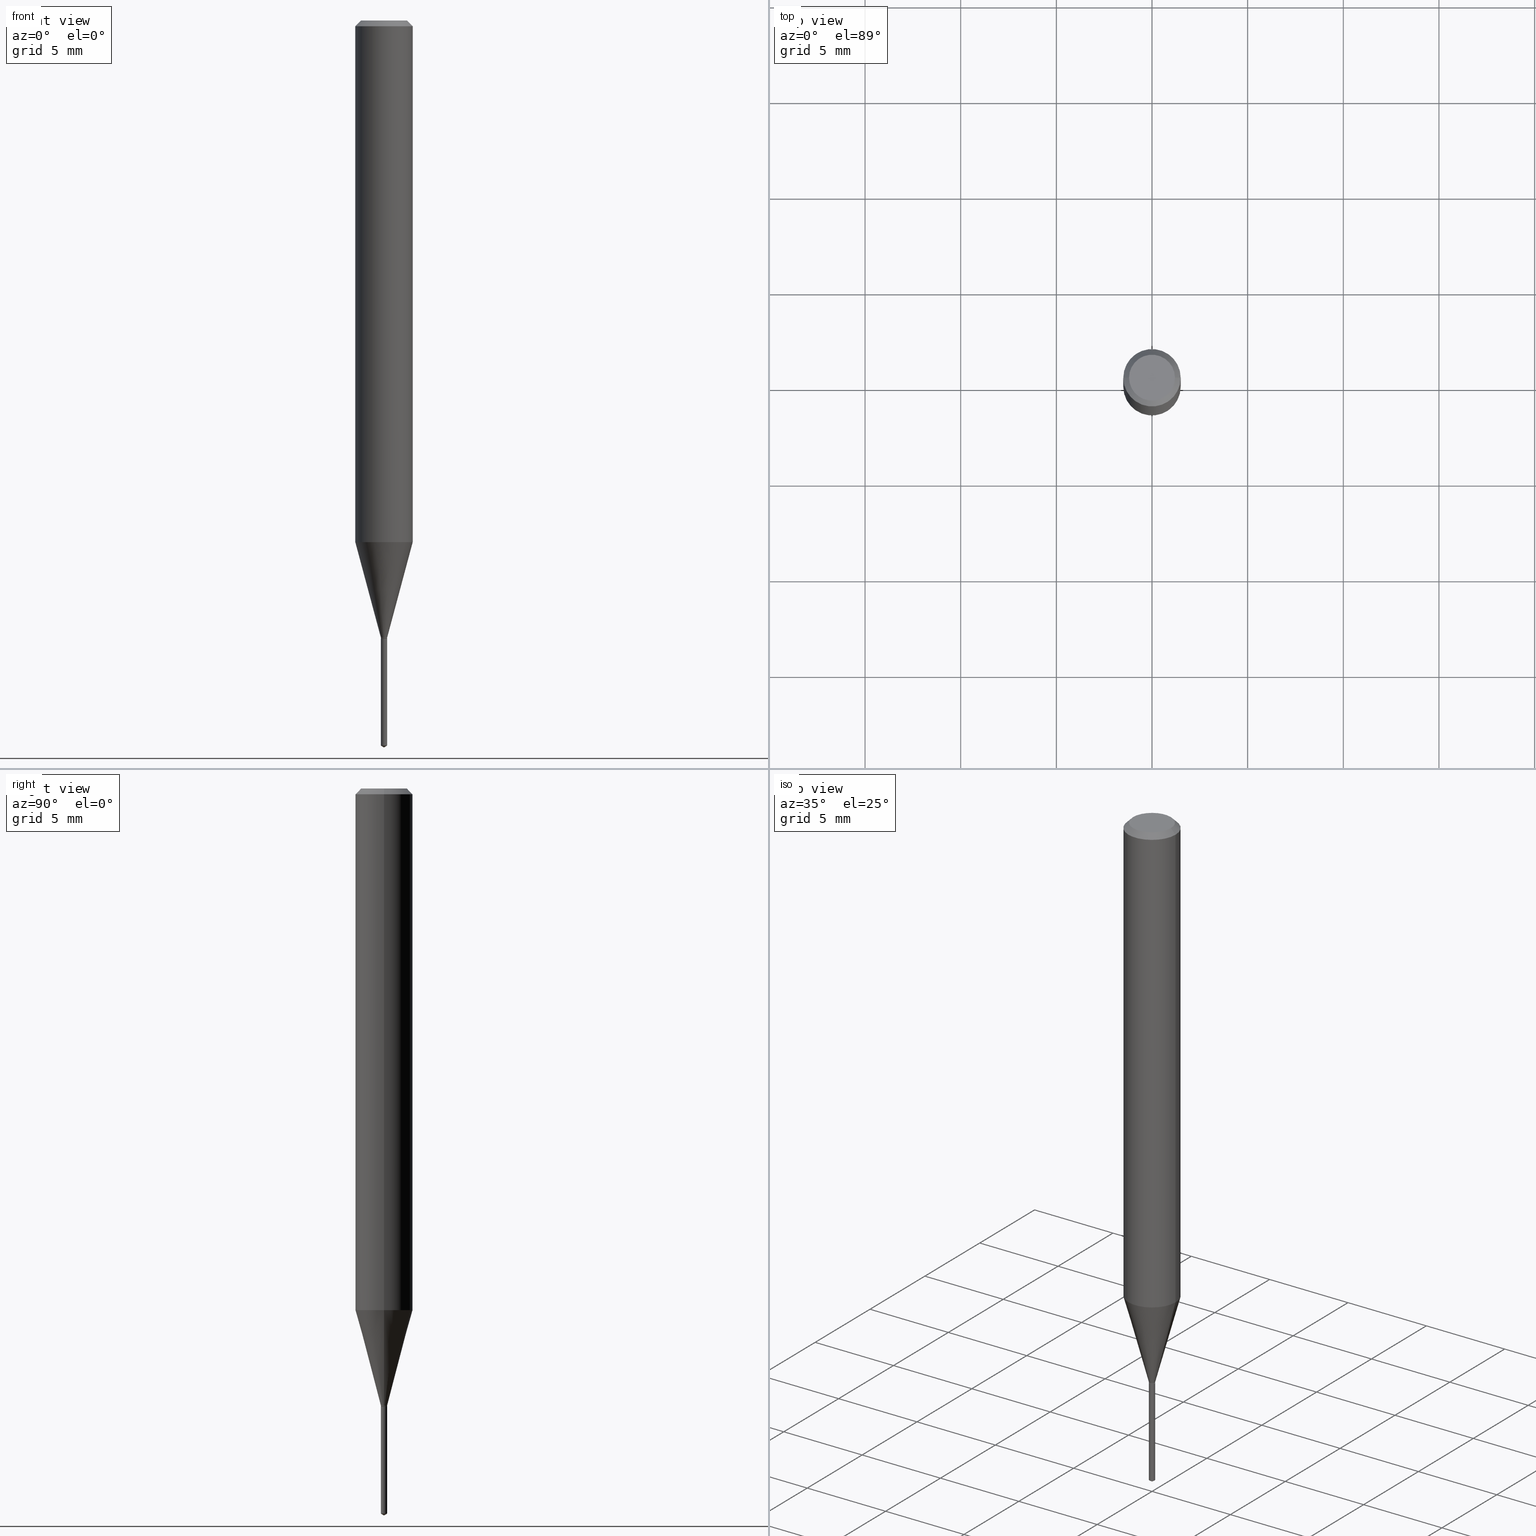
[diagram: canonical four-view strip — front | top / right | iso, engineering-drawing reading convention]
A machine part, canonical four-view strip (front | top / right | iso — engineering-drawing reading convention). The complete STEP part file that produces these views, byte-faithful:
ISO-10303-21;
HEADER;
FILE_DESCRIPTION (( 'STEP AP203' ),
    '1' );
FILE_NAME ('07408.STEP',
    '2024-04-23T21:08:28',
    ( '' ),
    ( '' ),
    'SwSTEP 2.0',
    'SolidWorks 2023',
    '' );
FILE_SCHEMA (( 'CONFIG_CONTROL_DESIGN' ));
ENDSEC;

DATA;
#1 = EDGE_CURVE ( 'NONE', #10, #107, #301, .T. ) ;
#2 = ORIENTED_EDGE ( 'NONE', *, *, #147, .F. ) ;
#3 = CARTESIAN_POINT ( 'NONE',  ( 4.618527782444303792E-17, 0.006499999999995558810, -1.271700000000000053 ) ) ;
#4 = CONICAL_SURFACE ( 'NONE', #114, 0.005999999999999998390, 0.7853981633975496424 ) ;
#5 = SHAPE_DEFINITION_REPRESENTATION ( #445, #229 ) ;
#6 = DIRECTION ( 'NONE',  ( -2.445468806185136877E-29, 3.491481338843145188E-15, 1.000000000000000000 ) ) ;
#7 = CARTESIAN_POINT ( 'NONE',  ( 0.05905000000000014404, -4.160731030871339348E-15, -1.073580730062255295 ) ) ;
#8 = ORIENTED_EDGE ( 'NONE', *, *, #367, .T. ) ;
#9 = DIRECTION ( 'NONE',  ( -0.7071067811865453523, 2.468850131082234184E-15, -0.7071067811865496822 ) ) ;
#10 = VERTEX_POINT ( 'NONE', #138 ) ;
#11 = CIRCLE ( 'NONE', #135, 0.006499999999999998834 ) ;
#12 = CONICAL_SURFACE ( 'NONE', #148, 0.05904999999999999832, 0.7853981633974452814 ) ;
#13 = LINE ( 'NONE', #467, #210 ) ;
#14 = ORIENTED_EDGE ( 'NONE', *, *, #286, .T. ) ;
#15 = LINE ( 'NONE', #327, #146 ) ;
#16 = ORIENTED_EDGE ( 'NONE', *, *, #147, .T. ) ;
#17 = ADVANCED_FACE ( 'NONE', ( #102 ), #141, .F. ) ;
#18 = PRODUCT ( '07408', '07408', '', ( #149 ) ) ;
#19 = FACE_OUTER_BOUND ( 'NONE', #168, .T. ) ;
#20 = FACE_OUTER_BOUND ( 'NONE', #268, .T. ) ;
#21 = VECTOR ( 'NONE', #444, 39.37007874015747433 ) ;
#22 = PRODUCT_DEFINITION_FORMATION_WITH_SPECIFIED_SOURCE ( 'ANY', '', #18, .NOT_KNOWN. ) ;
#23 = CARTESIAN_POINT ( 'NONE',  ( 3.105011743213267483E-29, -4.433133855929141290E-15, -1.269699999999999829 ) ) ;
#24 = EDGE_CURVE ( 'NONE', #307, #88, #36, .T. ) ;
#25 = DIRECTION ( 'NONE',  ( 1.000000000000000000, -6.982962677686266711E-15, 4.876176775795936353E-29 ) ) ;
#26 = ORIENTED_EDGE ( 'NONE', *, *, #263, .T. ) ;
#27 = PERSON_AND_ORGANIZATION_ROLE ( 'creator' ) ;
#28 = DIRECTION ( 'NONE',  ( -2.445468806185136597E-29, 3.491481338843145583E-15, 1.000000000000000000 ) ) ;
#29 = AXIS2_PLACEMENT_3D ( 'NONE', #152, #87, #274 ) ;
#30 = APPLICATION_CONTEXT ( 'configuration controlled 3d designs of mechanical parts and assemblies' ) ;
#31 = APPROVAL_DATE_TIME ( #257, #279 ) ;
#32 = CARTESIAN_POINT ( 'NONE',  ( 3.109902680825638129E-29, -4.440116818606828093E-15, -1.271700000000000053 ) ) ;
#33 = MANIFOLD_SOLID_BREP ( 'Body-Move/Copy2[1]', #254 ) ;
#34 = APPLICATION_PROTOCOL_DEFINITION ( 'international standard', 'config_control_design', 1994, #271 ) ;
#35 = UNCERTAINTY_MEASURE_WITH_UNIT (LENGTH_MEASURE( 1.000000000000000082E-05 ), #103, 'distance_accuracy_value', 'NONE');
#36 = LINE ( 'NONE', #183, #328 ) ;
#37 = PERSON_AND_ORGANIZATION_ROLE ( 'creator' ) ;
#38 = DIRECTION ( 'NONE',  ( 1.000000000000000000, -6.982962677686265133E-15, 0.000000000000000000 ) ) ;
#39 = VECTOR ( 'NONE', #375, 39.37007874015748143 ) ;
#40 = CC_DESIGN_SECURITY_CLASSIFICATION ( #203, ( #22 ) ) ;
#41 = CARTESIAN_POINT ( 'NONE',  ( 3.109902680825638129E-29, -4.440116818606828093E-15, -1.271700000000000053 ) ) ;
#42 = EDGE_CURVE ( 'NONE', #326, #10, #246, .T. ) ;
#43 = CARTESIAN_POINT ( 'NONE',  ( 3.109902680825638129E-29, -4.440116818606828093E-15, -1.271700000000000053 ) ) ;
#44 = DIRECTION ( 'NONE',  ( 1.000000000000000000, -6.982962677686266711E-15, 0.000000000000000000 ) ) ;
#45 = CIRCLE ( 'NONE', #176, 0.05904999999999999832 ) ;
#46 = CONICAL_SURFACE ( 'NONE', #137, 0.006499999999999998834, 0.2617993877991500740 ) ;
#47 = DIRECTION ( 'NONE',  ( -2.445468806185136877E-29, 3.491481338843145188E-15, 1.000000000000000000 ) ) ;
#48 = EDGE_LOOP ( 'NONE', ( #96, #117, #454, #57 ) ) ;
#49 = CC_DESIGN_PERSON_AND_ORGANIZATION_ASSIGNMENT ( #370, #27, ( #22 ) ) ;
#50 = CARTESIAN_POINT ( 'NONE',  ( 3.646262494524386846E-29, -5.214053690114014577E-15, -1.492194405976320581 ) ) ;
#51 = ORIENTED_EDGE ( 'NONE', *, *, #42, .F. ) ;
#52 = DIRECTION ( 'NONE',  ( -2.432532523098789799E-29, 3.510006832510301925E-15, 1.000000000000000000 ) ) ;
#53 = ORIENTED_EDGE ( 'NONE', *, *, #292, .T. ) ;
#54 = AXIS2_PLACEMENT_3D ( 'NONE', #298, #259, #180 ) ;
#55 = AXIS2_PLACEMENT_3D ( 'NONE', #442, #376, #181 ) ;
#56 = CARTESIAN_POINT ( 'NONE',  ( 2.888098660104663328E-31, -4.123439461173779030E-17, -0.01181000000000006871 ) ) ;
#57 = ORIENTED_EDGE ( 'NONE', *, *, #71, .F. ) ;
#58 = CARTESIAN_POINT ( 'NONE',  ( 3.109902680825638129E-29, -4.440116818606828093E-15, -1.271700000000000053 ) ) ;
#59 = DIRECTION ( 'NONE',  ( -2.445468806185136597E-29, 3.491481338843145583E-15, 1.000000000000000000 ) ) ;
#60 = EDGE_CURVE ( 'NONE', #422, #107, #11, .T. ) ;
#61 = FACE_OUTER_BOUND ( 'NONE', #233, .T. ) ;
#62 = LOCAL_TIME ( 17, 8, 28.00000000000000000, #76 ) ;
#63 = COORDINATED_UNIVERSAL_TIME_OFFSET ( 5, 0, .BEHIND. ) ;
#64 = VERTEX_POINT ( 'NONE', #150 ) ;
#65 = APPROVAL_ROLE ( '' ) ;
#66 = DIRECTION ( 'NONE',  ( 2.438088387897960049E-29, -3.491481338843145188E-15, -1.000000000000000000 ) ) ;
#67 = APPROVAL_DATE_TIME ( #378, #133 ) ;
#68 = CARTESIAN_POINT ( 'NONE',  ( 8.265746106709734507E-48, -1.180129479067563789E-33, -3.380025165646692144E-19 ) ) ;
#69 = CONICAL_SURFACE ( 'NONE', #409, 65.52281426576659840, 1.029744258676642099 ) ;
#70 = VECTOR ( 'NONE', #329, 39.37007874015748143 ) ;
#71 = EDGE_CURVE ( 'NONE', #88, #230, #358, .T. ) ;
#72 = CARTESIAN_POINT ( 'NONE',  ( 3.105011743213267483E-29, -4.433133855929141290E-15, -1.269699999999999829 ) ) ;
#73 = EDGE_LOOP ( 'NONE', ( #247, #345, #431, #470 ) ) ;
#74 = APPROVAL_ROLE ( '' ) ;
#75 = ORIENTED_EDGE ( 'NONE', *, *, #182, .T. ) ;
#76 = COORDINATED_UNIVERSAL_TIME_OFFSET ( 5, 0, .BEHIND. ) ;
#77 = PRODUCT_DEFINITION ( 'UNKNOWN', '', #22, #300 ) ;
#78 = CARTESIAN_POINT ( 'NONE',  ( -0.006499999999999998834, -4.389567189108866992E-15, -1.271200000000000108 ) ) ;
#79 = CIRCLE ( 'NONE', #201, 0.006499999999999998834 ) ;
#80 = AXIS2_PLACEMENT_3D ( 'NONE', #97, #173, #399 ) ;
#81 = CARTESIAN_POINT ( 'NONE',  ( 2.888098660104663328E-31, -4.123439461173779030E-17, -0.01181000000000006871 ) ) ;
#82 = DIRECTION ( 'NONE',  ( 1.000000000000000000, -6.982962677686258822E-15, 0.000000000000000000 ) ) ;
#83 = DIRECTION ( 'NONE',  ( -6.982962677686265922E-15, -1.000000000000000000, 0.000000000000000000 ) ) ;
#84 = EDGE_CURVE ( 'NONE', #230, #447, #407, .T. ) ;
#85 = ORIENTED_EDGE ( 'NONE', *, *, #263, .F. ) ;
#86 = CIRCLE ( 'NONE', #433, 0.05905000000000013016 ) ;
#87 = DIRECTION ( 'NONE',  ( -2.445468806185136597E-29, 3.491481338843145583E-15, 1.000000000000000000 ) ) ;
#88 = VERTEX_POINT ( 'NONE', #412 ) ;
#89 = CARTESIAN_POINT ( 'NONE',  ( 0.000000000000000000, 0.000000000000000000, 0.000000000000000000 ) ) ;
#90 = ORIENTED_EDGE ( 'NONE', *, *, #175, .F. ) ;
#91 = DIRECTION ( 'NONE',  ( 2.445468806185136597E-29, -3.491481338843145583E-15, -1.000000000000000000 ) ) ;
#92 = CC_DESIGN_DATE_AND_TIME_ASSIGNMENT ( #310, #234, ( #203 ) ) ;
#93 = EDGE_LOOP ( 'NONE', ( #462, #335, #85 ) ) ;
#94 = CIRCLE ( 'NONE', #373, 0.006499999999999998834 ) ;
#95 = DIRECTION ( 'NONE',  ( 1.000000000000000000, -6.982962677686266711E-15, 4.876176775795936353E-29 ) ) ;
#96 = ORIENTED_EDGE ( 'NONE', *, *, #24, .F. ) ;
#97 = CARTESIAN_POINT ( 'NONE',  ( 3.109902680825638129E-29, -4.440116818606828093E-15, -1.271700000000000053 ) ) ;
#98 = CARTESIAN_POINT ( 'NONE',  ( 0.05904999999999999832, -4.535783407291118600E-16, -0.01181000000000006871 ) ) ;
#99 = EDGE_CURVE ( 'NONE', #222, #317, #226, .T. ) ;
#100 = CARTESIAN_POINT ( 'NONE',  ( 3.105011743213267483E-29, -4.433133855929141290E-15, -1.269699999999999829 ) ) ;
#101 = CALENDAR_DATE ( 2024, 23, 4 ) ;
#102 = FACE_OUTER_BOUND ( 'NONE', #205, .T. ) ;
#103 =( CONVERSION_BASED_UNIT ( 'INCH', #142 ) LENGTH_UNIT ( ) NAMED_UNIT ( #338 ) );
#104 = EDGE_CURVE ( 'NONE', #317, #239, #415, .T. ) ;
#105 = DIRECTION ( 'NONE',  ( -2.445468806185136597E-29, 3.491481338843145583E-15, 1.000000000000000000 ) ) ;
#106 = DIRECTION ( 'NONE',  ( -2.445468806185136597E-29, 3.491481338843145583E-15, 1.000000000000000000 ) ) ;
#107 = VERTEX_POINT ( 'NONE', #78 ) ;
#108 = VECTOR ( 'NONE', #9, 39.37007874015748143 ) ;
#109 = LOCAL_TIME ( 17, 8, 28.00000000000000000, #63 ) ;
#110 = DIRECTION ( 'NONE',  ( -2.445468806185136877E-29, 3.491481338843145188E-15, 1.000000000000000000 ) ) ;
#111 = EDGE_CURVE ( 'NONE', #324, #230, #337, .T. ) ;
#112 = ORIENTED_EDGE ( 'NONE', *, *, #436, .T. ) ;
#113 = DIRECTION ( 'NONE',  ( 6.090539988449734259E-15, 0.8571673007021076707, 0.5150380749100618161 ) ) ;
#114 = AXIS2_PLACEMENT_3D ( 'NONE', #270, #390, #314 ) ;
#115 = DIRECTION ( 'NONE',  ( -2.445468806185136597E-29, 3.491481338843145583E-15, 1.000000000000000000 ) ) ;
#116 = LINE ( 'NONE', #158, #129 ) ;
#117 = ORIENTED_EDGE ( 'NONE', *, *, #484, .T. ) ;
#118 = PERSON_AND_ORGANIZATION_ROLE ( 'classification_officer' ) ;
#119 = DIRECTION ( 'NONE',  ( -6.982962677686266711E-15, -1.000000000000000000, 0.000000000000000000 ) ) ;
#120 = EDGE_LOOP ( 'NONE', ( #244, #280, #53, #14 ) ) ;
#121 = AXIS2_PLACEMENT_3D ( 'NONE', #490, #309, #83 ) ;
#122 = LINE ( 'NONE', #192, #108 ) ;
#123 = ORIENTED_EDGE ( 'NONE', *, *, #347, .F. ) ;
#124 = APPROVAL ( #231, 'UNSPECIFIED' ) ;
#125 = CYLINDRICAL_SURFACE ( 'NONE', #365, 0.006500000000000001436 ) ;
#126 = EDGE_LOOP ( 'NONE', ( #391, #360, #332, #400 ) ) ;
#127 = CYLINDRICAL_SURFACE ( 'NONE', #449, 0.05905000000000006771 ) ;
#128 = ORIENTED_EDGE ( 'NONE', *, *, #207, .T. ) ;
#129 = VECTOR ( 'NONE', #47, 39.37007874015748143 ) ;
#130 = CIRCLE ( 'NONE', #80, 0.005999999999999998390 ) ;
#131 = DIRECTION ( 'NONE',  ( 0.7071067811865453523, -7.319954787623248157E-15, -0.7071067811865496822 ) ) ;
#132 = DIRECTION ( 'NONE',  ( 2.445468806185136597E-29, -3.491481338843145583E-15, -1.000000000000000000 ) ) ;
#133 = APPROVAL ( #334, 'UNSPECIFIED' ) ;
#134 = DIRECTION ( 'NONE',  ( -2.432532523098789799E-29, 3.510006832510301925E-15, 1.000000000000000000 ) ) ;
#135 = AXIS2_PLACEMENT_3D ( 'NONE', #478, #28, #145 ) ;
#136 = PERSON_AND_ORGANIZATION ( #236, #465 ) ;
#137 = AXIS2_PLACEMENT_3D ( 'NONE', #100, #291, #252 ) ;
#138 = CARTESIAN_POINT ( 'NONE',  ( -0.005999999999999998390, -4.394835027287111632E-15, -1.271700000000000053 ) ) ;
#139 = ADVANCED_FACE ( 'NONE', ( #482 ), #143, .F. ) ;
#140 = SECURITY_CLASSIFICATION_LEVEL ( 'unclassified' ) ;
#141 = PLANE ( 'NONE',  #439 ) ;
#142 = LENGTH_MEASURE_WITH_UNIT ( LENGTH_MEASURE( 0.02539999999999999897 ), #488 );
#143 = PLANE ( 'NONE',  #448 ) ;
#144 = PERSON_AND_ORGANIZATION ( #236, #465 ) ;
#145 = DIRECTION ( 'NONE',  ( 1.000000000000000000, -6.982962677686258822E-15, 0.000000000000000000 ) ) ;
#146 = VECTOR ( 'NONE', #432, 39.37007874015748143 ) ;
#147 = EDGE_CURVE ( 'NONE', #107, #422, #209, .T. ) ;
#148 = AXIS2_PLACEMENT_3D ( 'NONE', #56, #132, #293 ) ;
#149 = MECHANICAL_CONTEXT ( 'NONE', #271, 'mechanical' ) ;
#150 = CARTESIAN_POINT ( 'NONE',  ( -4.538925740492962760E-17, -0.006500000000004439726, -1.271700000000000053 ) ) ;
#151 = ORIENTED_EDGE ( 'NONE', *, *, #99, .T. ) ;
#152 = CARTESIAN_POINT ( 'NONE',  ( 8.265746106709734507E-48, -1.180129479067563789E-33, -3.380025165646692144E-19 ) ) ;
#153 = CARTESIAN_POINT ( 'NONE',  ( 3.109902680825638129E-29, -4.440116818606828093E-15, -1.271700000000000053 ) ) ;
#154 = CIRCLE ( 'NONE', #29, 0.04724000000000000421 ) ;
#155 = EDGE_CURVE ( 'NONE', #250, #288, #294, .T. ) ;
#156 = DIRECTION ( 'NONE',  ( -2.432532523098789799E-29, 3.510006832510301925E-15, 1.000000000000000000 ) ) ;
#157 = CALENDAR_DATE ( 2024, 23, 4 ) ;
#158 = CARTESIAN_POINT ( 'NONE',  ( -0.05905000000000006771, 4.195754854663396409E-16, -2.904631170795525045E-30 ) ) ;
#159 = EDGE_LOOP ( 'NONE', ( #276, #426, #264 ) ) ;
#160 = COORDINATED_UNIVERSAL_TIME_OFFSET ( 5, 0, .BEHIND. ) ;
#161 = LINE ( 'NONE', #392, #404 ) ;
#162 = CC_DESIGN_PERSON_AND_ORGANIZATION_ASSIGNMENT ( #306, #339, ( #18 ) ) ;
#163 = VERTEX_POINT ( 'NONE', #281 ) ;
#164 = VECTOR ( 'NONE', #131, 39.37007874015748143 ) ;
#165 = DIRECTION ( 'NONE',  ( -6.982962677686265133E-15, -1.000000000000000000, 3.602282186708679263E-15 ) ) ;
#166 = ORIENTED_EDGE ( 'NONE', *, *, #286, .F. ) ;
#167 = CARTESIAN_POINT ( 'NONE',  ( 0.000000000000000000, 0.000000000000000000, 0.000000000000000000 ) ) ;
#168 = EDGE_LOOP ( 'NONE', ( #429, #26, #342, #202 ) ) ;
#169 = FACE_OUTER_BOUND ( 'NONE', #398, .T. ) ;
#170 = VECTOR ( 'NONE', #489, 39.37007874015748143 ) ;
#171 = CARTESIAN_POINT ( 'NONE',  ( 0.005999999999999998390, -4.482014594672946545E-15, -1.271700000000000053 ) ) ;
#172 = EDGE_CURVE ( 'NONE', #88, #282, #116, .T. ) ;
#173 = DIRECTION ( 'NONE',  ( -2.445468806185136597E-29, 3.491481338843145583E-15, 1.000000000000000000 ) ) ;
#174 = EDGE_LOOP ( 'NONE', ( #8, #434, #90, #356 ) ) ;
#175 = EDGE_CURVE ( 'NONE', #447, #282, #311, .T. ) ;
#176 = AXIS2_PLACEMENT_3D ( 'NONE', #419, #386, #44 ) ;
#177 = CALENDAR_DATE ( 2024, 23, 4 ) ;
#178 = DIRECTION ( 'NONE',  ( -2.445468806185136597E-29, 3.491481338843145583E-15, 1.000000000000000000 ) ) ;
#179 = PERSON_AND_ORGANIZATION ( #236, #465 ) ;
#180 = DIRECTION ( 'NONE',  ( -6.982962677686266711E-15, -1.000000000000000000, 0.000000000000000000 ) ) ;
#181 = DIRECTION ( 'NONE',  ( 1.000000000000000000, 0.000000000000000000, 0.000000000000000000 ) ) ;
#182 = EDGE_CURVE ( 'NONE', #288, #250, #154, .T. ) ;
#183 = CARTESIAN_POINT ( 'NONE',  ( -0.006499999999999998834, -4.386948578104734342E-15, -1.269699999999999829 ) ) ;
#184 = MANIFOLD_SOLID_BREP ( 'Body-Move/Copy2[2]', #253 ) ;
#185 = EDGE_CURVE ( 'NONE', #324, #307, #79, .T. ) ;
#186 = CARTESIAN_POINT ( 'NONE',  ( 4.618527782443760834E-17, 0.006499999999995561412, -1.271700000000000053 ) ) ;
#187 = CIRCLE ( 'NONE', #269, 0.006500000000000003171 ) ;
#188 = ORIENTED_EDGE ( 'NONE', *, *, #185, .T. ) ;
#189 = DIRECTION ( 'NONE',  ( -2.445468806185136597E-29, 3.491481338843145583E-15, 1.000000000000000000 ) ) ;
#190 = CARTESIAN_POINT ( 'NONE',  ( 3.672502563160915259E-29, -5.204203481525616565E-15, -1.496099999999999985 ) ) ;
#191 = ADVANCED_FACE ( 'NONE', ( #232 ), #195, .T. ) ;
#192 = CARTESIAN_POINT ( 'NONE',  ( -0.05904999999999999832, 3.711095515056362547E-16, -0.01181000000000006871 ) ) ;
#193 = CONICAL_SURFACE ( 'NONE', #487, 0.006499999999999998834, 0.2617993877991500740 ) ;
#194 = ORIENTED_EDGE ( 'NONE', *, *, #104, .T. ) ;
#195 = CYLINDRICAL_SURFACE ( 'NONE', #348, 0.006499999999999998834 ) ;
#196 = ORIENTED_EDGE ( 'NONE', *, *, #372, .T. ) ;
#197 = DIRECTION ( 'NONE',  ( -6.982962677686265133E-15, -1.000000000000000000, 3.602282186708679263E-15 ) ) ;
#198 = ADVANCED_FACE ( 'NONE', ( #235 ), #352, .T. ) ;
#199 = ORIENTED_EDGE ( 'NONE', *, *, #84, .T. ) ;
#200 = CYLINDRICAL_SURFACE ( 'NONE', #350, 0.05905000000000006771 ) ;
#201 = AXIS2_PLACEMENT_3D ( 'NONE', #277, #421, #82 ) ;
#202 = ORIENTED_EDGE ( 'NONE', *, *, #207, .F. ) ;
#203 = SECURITY_CLASSIFICATION ( '', '', #140 ) ;
#204 = FACE_OUTER_BOUND ( 'NONE', #242, .T. ) ;
#205 = EDGE_LOOP ( 'NONE', ( #459, #128 ) ) ;
#206 = DIRECTION ( 'NONE',  ( -2.438088387897960049E-29, 3.491481338843145188E-15, 1.000000000000000000 ) ) ;
#207 = EDGE_CURVE ( 'NONE', #239, #64, #473, .T. ) ;
#208 = CARTESIAN_POINT ( 'NONE',  ( 2.888098660104663328E-31, -4.123439461173779030E-17, -0.01181000000000006871 ) ) ;
#209 = CIRCLE ( 'NONE', #416, 0.006499999999999998834 ) ;
#210 = VECTOR ( 'NONE', #471, 39.37007874015748143 ) ;
#211 = DIRECTION ( 'NONE',  ( -2.445468806185136597E-29, 3.491481338843145583E-15, 1.000000000000000000 ) ) ;
#212 = COORDINATED_UNIVERSAL_TIME_OFFSET ( 5, 0, .BEHIND. ) ;
#213 = CC_DESIGN_DATE_AND_TIME_ASSIGNMENT ( #295, #406, ( #77 ) ) ;
#214 = EDGE_LOOP ( 'NONE', ( #75, #353 ) ) ;
#215 = APPROVAL_STATUS ( 'not_yet_approved' ) ;
#216 = ORIENTED_EDGE ( 'NONE', *, *, #172, .F. ) ;
#217 = VECTOR ( 'NONE', #113, 39.37007874015748143 ) ;
#218 = PERSON_AND_ORGANIZATION ( #236, #465 ) ;
#219 = CONICAL_SURFACE ( 'NONE', #388, 0.05904999999999999832, 0.7853981633974452814 ) ;
#220 = DIRECTION ( 'NONE',  ( -2.445468806185136597E-29, 3.491481338843145583E-15, 1.000000000000000000 ) ) ;
#221 =( NAMED_UNIT ( * ) SI_UNIT ( $, .STERADIAN. ) SOLID_ANGLE_UNIT ( ) );
#222 = VERTEX_POINT ( 'NONE', #237 ) ;
#223 = EDGE_CURVE ( 'NONE', #163, #317, #387, .T. ) ;
#224 = CALENDAR_DATE ( 2024, 23, 4 ) ;
#225 = DIRECTION ( 'NONE',  ( 2.432532523098789519E-29, -3.510006832510302319E-15, -1.000000000000000000 ) ) ;
#226 = CIRCLE ( 'NONE', #54, 0.006500000000000003171 ) ;
#227 = CARTESIAN_POINT ( 'NONE',  ( 4.132873053354867254E-48, -5.900647395337818946E-34, -1.690012582823346072E-19 ) ) ;
#228 = CC_DESIGN_APPROVAL ( #124, ( #203 ) ) ;
#229 = ADVANCED_BREP_SHAPE_REPRESENTATION ( '07408', ( #33, #184, #55 ), #289 ) ;
#230 = VERTEX_POINT ( 'NONE', #7 ) ;
#231 = APPROVAL_STATUS ( 'not_yet_approved' ) ;
#232 = FACE_OUTER_BOUND ( 'NONE', #381, .T. ) ;
#233 = EDGE_LOOP ( 'NONE', ( #216, #284, #199, #166 ) ) ;
#234 = DATE_TIME_ROLE ( 'classification_date' ) ;
#235 = FACE_OUTER_BOUND ( 'NONE', #362, .T. ) ;
#236 = PERSON ( 'UNSPECIFIED', 'UNSPECIFIED', 'UNSPECIFIED', ('UNSPECIFIED'), ('UNSPECIFIED'), ('UNSPECIFIED') ) ;
#237 = CARTESIAN_POINT ( 'NONE',  ( -4.538925740492429046E-17, -0.006500000000005218617, -1.492194405976320581 ) ) ;
#238 = CC_DESIGN_APPROVAL ( #133, ( #77 ) ) ;
#239 = VERTEX_POINT ( 'NONE', #3 ) ;
#240 = ADVANCED_FACE ( 'NONE', ( #241 ), #4, .T. ) ;
#241 = FACE_OUTER_BOUND ( 'NONE', #485, .T. ) ;
#242 = EDGE_LOOP ( 'NONE', ( #51, #413 ) ) ;
#243 = FACE_OUTER_BOUND ( 'NONE', #159, .T. ) ;
#244 = ORIENTED_EDGE ( 'NONE', *, *, #343, .F. ) ;
#245 = DIRECTION ( 'NONE',  ( -1.000000000000000000, 6.982962677686266711E-15, 0.000000000000000000 ) ) ;
#246 = CIRCLE ( 'NONE', #463, 0.005999999999999998390 ) ;
#247 = ORIENTED_EDGE ( 'NONE', *, *, #42, .T. ) ;
#248 = CARTESIAN_POINT ( 'NONE',  ( 0.005999999999999998390, -4.482014594672946545E-15, -1.271700000000000053 ) ) ;
#249 = ADVANCED_FACE ( 'NONE', ( #315 ), #396, .T. ) ;
#250 = VERTEX_POINT ( 'NONE', #418 ) ;
#251 = DIRECTION ( 'NONE',  ( -6.982962677686265922E-15, -1.000000000000000000, 0.000000000000000000 ) ) ;
#252 = DIRECTION ( 'NONE',  ( 1.000000000000000000, -6.982962677686258822E-15, 0.000000000000000000 ) ) ;
#253 = CLOSED_SHELL ( 'NONE', ( #249, #427, #336, #456, #476, #191, #402, #472, #441, #139, #461, #240 ) ) ;
#254 = CLOSED_SHELL ( 'NONE', ( #198, #275, #308, #420, #17 ) ) ;
#255 = EDGE_CURVE ( 'NONE', #64, #239, #94, .T. ) ;
#256 = CARTESIAN_POINT ( 'NONE',  ( 0.05904999999999999832, -4.463468013801466955E-16, -0.01181000000000006871 ) ) ;
#257 = DATE_AND_TIME ( #101, #321 ) ;
#258 = ORIENTED_EDGE ( 'NONE', *, *, #297, .T. ) ;
#259 = DIRECTION ( 'NONE',  ( -2.432532523098789799E-29, 3.510006832510301925E-15, 1.000000000000000000 ) ) ;
#260 = AXIS2_PLACEMENT_3D ( 'NONE', #43, #156, #455 ) ;
#261 = DIRECTION ( 'NONE',  ( 1.000000000000000000, -6.982962677686267499E-15, 4.876176775795935793E-29 ) ) ;
#262 = CARTESIAN_POINT ( 'NONE',  ( 3.108679946422545888E-29, -4.438371077937407378E-15, -1.271200000000000108 ) ) ;
#263 = EDGE_CURVE ( 'NONE', #317, #222, #187, .T. ) ;
#264 = ORIENTED_EDGE ( 'NONE', *, *, #99, .F. ) ;
#265 = ORIENTED_EDGE ( 'NONE', *, *, #292, .F. ) ;
#266 = DATE_AND_TIME ( #354, #405 ) ;
#267 = ORIENTED_EDGE ( 'NONE', *, *, #111, .F. ) ;
#268 = EDGE_LOOP ( 'NONE', ( #389, #394, #466, #265 ) ) ;
#269 = AXIS2_PLACEMENT_3D ( 'NONE', #50, #457, #119 ) ;
#270 = CARTESIAN_POINT ( 'NONE',  ( 3.109902680825638129E-29, -4.440116818606828093E-15, -1.271700000000000053 ) ) ;
#271 = APPLICATION_CONTEXT ( 'configuration controlled 3d designs of mechanical parts and assemblies' ) ;
#272 = CARTESIAN_POINT ( 'NONE',  ( -0.05904999999999999832, -1.475235254216510994E-15, -0.01181000000000006871 ) ) ;
#273 = APPROVAL_ROLE ( '' ) ;
#274 = DIRECTION ( 'NONE',  ( 1.000000000000000000, -6.982962677686266711E-15, 4.876185090822587894E-29 ) ) ;
#275 = ADVANCED_FACE ( 'NONE', ( #243 ), #69, .T. ) ;
#276 = ORIENTED_EDGE ( 'NONE', *, *, #316, .F. ) ;
#277 = CARTESIAN_POINT ( 'NONE',  ( 3.105011743213267483E-29, -4.433133855929141290E-15, -1.269699999999999829 ) ) ;
#278 = APPROVAL_PERSON_ORGANIZATION ( #136, #279, #65 ) ;
#279 = APPROVAL ( #215, 'UNSPECIFIED' ) ;
#280 = ORIENTED_EDGE ( 'NONE', *, *, #182, .F. ) ;
#281 = CARTESIAN_POINT ( 'NONE',  ( 3.639311907808099085E-29, -5.251321222118662745E-15, -1.496099999999999985 ) ) ;
#282 = VERTEX_POINT ( 'NONE', #272 ) ;
#283 = CARTESIAN_POINT ( 'NONE',  ( 0.006499999999999998834, -4.483760335342368049E-15, -1.271200000000000108 ) ) ;
#284 = ORIENTED_EDGE ( 'NONE', *, *, #71, .T. ) ;
#285 = CARTESIAN_POINT ( 'NONE',  ( 0.000000000000000000, 0.000000000000000000, 0.000000000000000000 ) ) ;
#286 = EDGE_CURVE ( 'NONE', #282, #447, #45, .T. ) ;
#287 = AXIS2_PLACEMENT_3D ( 'NONE', #68, #220, #411 ) ;
#288 = VERTEX_POINT ( 'NONE', #355 ) ;
#289 =( GEOMETRIC_REPRESENTATION_CONTEXT ( 3 ) GLOBAL_UNCERTAINTY_ASSIGNED_CONTEXT ( ( #35 ) ) GLOBAL_UNIT_ASSIGNED_CONTEXT ( ( #103, #477, #221 ) ) REPRESENTATION_CONTEXT ( 'NONE', 'WORKASPACE' ) );
#290 = DIRECTION ( 'NONE',  ( 1.000000000000000000, -6.982962677686265133E-15, 0.000000000000000000 ) ) ;
#291 = DIRECTION ( 'NONE',  ( -2.445468806185136597E-29, 3.491481338843145583E-15, 1.000000000000000000 ) ) ;
#292 = EDGE_CURVE ( 'NONE', #288, #282, #122, .T. ) ;
#293 = DIRECTION ( 'NONE',  ( -1.000000000000000000, 6.982962677686266711E-15, 0.000000000000000000 ) ) ;
#294 = CIRCLE ( 'NONE', #287, 0.04724000000000000421 ) ;
#295 = DATE_AND_TIME ( #177, #374 ) ;
#296 = DIRECTION ( 'NONE',  ( 1.000000000000000000, -6.982962677686334553E-15, 0.000000000000000000 ) ) ;
#297 = EDGE_CURVE ( 'NONE', #422, #324, #161, .T. ) ;
#298 = CARTESIAN_POINT ( 'NONE',  ( 3.646262494524386846E-29, -5.214053690114014577E-15, -1.492194405976320581 ) ) ;
#299 = DIRECTION ( 'NONE',  ( -2.445468806185136597E-29, 3.491481338843145583E-15, 1.000000000000000000 ) ) ;
#300 = DESIGN_CONTEXT ( 'detailed design', #30, 'design' ) ;
#301 = LINE ( 'NONE', #377, #39 ) ;
#302 = AXIS2_PLACEMENT_3D ( 'NONE', #153, #115, #346 ) ;
#303 = CARTESIAN_POINT ( 'NONE',  ( 0.000000000000000000, 0.000000000000000000, 0.000000000000000000 ) ) ;
#304 = CC_DESIGN_APPROVAL ( #279, ( #22 ) ) ;
#305 = CARTESIAN_POINT ( 'NONE',  ( 2.625408186288710950E-29, -3.748387084753965216E-15, -1.073580730062255295 ) ) ;
#306 = PERSON_AND_ORGANIZATION ( #236, #465 ) ;
#307 = VERTEX_POINT ( 'NONE', #319 ) ;
#308 = ADVANCED_FACE ( 'NONE', ( #464 ), #423, .T. ) ;
#309 = DIRECTION ( 'NONE',  ( -2.432532523098789799E-29, 3.510006832510301925E-15, 1.000000000000000000 ) ) ;
#310 = DATE_AND_TIME ( #157, #62 ) ;
#311 = CIRCLE ( 'NONE', #333, 0.05904999999999999832 ) ;
#312 = DIRECTION ( 'NONE',  ( -6.982962677686266711E-15, -1.000000000000000000, 0.000000000000000000 ) ) ;
#313 = AXIS2_PLACEMENT_3D ( 'NONE', #303, #299, #261 ) ;
#314 = DIRECTION ( 'NONE',  ( 1.000000000000000000, -6.982962677686334553E-15, 0.000000000000000000 ) ) ;
#315 = FACE_OUTER_BOUND ( 'NONE', #73, .T. ) ;
#316 = EDGE_CURVE ( 'NONE', #163, #222, #15, .T. ) ;
#317 = VERTEX_POINT ( 'NONE', #438 ) ;
#318 = PERSON_AND_ORGANIZATION ( #236, #465 ) ;
#319 = CARTESIAN_POINT ( 'NONE',  ( -0.006499999999999998834, -4.389567189108866992E-15, -1.269699999999999829 ) ) ;
#320 = AXIS2_PLACEMENT_3D ( 'NONE', #305, #453, #38 ) ;
#321 = LOCAL_TIME ( 17, 8, 28.00000000000000000, #368 ) ;
#322 = ORIENTED_EDGE ( 'NONE', *, *, #367, .F. ) ;
#323 = DIRECTION ( 'NONE',  ( -2.445468806185136597E-29, 3.491481338843145583E-15, 1.000000000000000000 ) ) ;
#324 = VERTEX_POINT ( 'NONE', #430 ) ;
#325 = PLANE ( 'NONE',  #410 ) ;
#326 = VERTEX_POINT ( 'NONE', #248 ) ;
#327 = CARTESIAN_POINT ( 'NONE',  ( 3.639311907808099085E-29, -5.251321222118662745E-15, -1.496099999999999985 ) ) ;
#328 = VECTOR ( 'NONE', #340, 39.37007874015747433 ) ;
#329 = DIRECTION ( 'NONE',  ( 0.7071067811866191821, -2.468850131083007662E-15, 0.7071067811864758523 ) ) ;
#330 = DIRECTION ( 'NONE',  ( -2.432532523098789799E-29, 3.510006832510302319E-15, 1.000000000000000000 ) ) ;
#331 = DIRECTION ( 'NONE',  ( 1.000000000000000000, -6.982962677686258822E-15, 0.000000000000000000 ) ) ;
#332 = ORIENTED_EDGE ( 'NONE', *, *, #185, .F. ) ;
#333 = AXIS2_PLACEMENT_3D ( 'NONE', #81, #189, #384 ) ;
#334 = APPROVAL_STATUS ( 'not_yet_approved' ) ;
#335 = ORIENTED_EDGE ( 'NONE', *, *, #316, .T. ) ;
#336 = ADVANCED_FACE ( 'NONE', ( #357 ), #200, .T. ) ;
#337 = LINE ( 'NONE', #443, #21 ) ;
#338 = DIMENSIONAL_EXPONENTS ( 1.000000000000000000, 0.000000000000000000, 0.000000000000000000, 0.000000000000000000, 0.000000000000000000, 0.000000000000000000, 0.000000000000000000 ) ;
#339 = PERSON_AND_ORGANIZATION_ROLE ( 'design_owner' ) ;
#340 = DIRECTION ( 'NONE',  ( -0.2588190451025213501, 5.211531920934551042E-15, 0.9659258262890682012 ) ) ;
#341 = APPROVAL_PERSON_ORGANIZATION ( #385, #124, #273 ) ;
#342 = ORIENTED_EDGE ( 'NONE', *, *, #379, .T. ) ;
#343 = EDGE_CURVE ( 'NONE', #250, #447, #364, .T. ) ;
#344 = DIRECTION ( 'NONE',  ( 1.000000000000000000, -6.982962677686267499E-15, 4.876176775795935793E-29 ) ) ;
#345 = ORIENTED_EDGE ( 'NONE', *, *, #1, .T. ) ;
#346 = DIRECTION ( 'NONE',  ( 1.000000000000000000, -6.982962677686334553E-15, 0.000000000000000000 ) ) ;
#347 = EDGE_CURVE ( 'NONE', #107, #307, #13, .T. ) ;
#348 = AXIS2_PLACEMENT_3D ( 'NONE', #89, #428, #344 ) ;
#349 = CARTESIAN_POINT ( 'NONE',  ( 3.109902680825638129E-29, -4.440116818606828093E-15, -1.271700000000000053 ) ) ;
#350 = AXIS2_PLACEMENT_3D ( 'NONE', #167, #323, #95 ) ;
#351 = CC_DESIGN_PERSON_AND_ORGANIZATION_ASSIGNMENT ( #179, #479, ( #22 ) ) ;
#352 = CYLINDRICAL_SURFACE ( 'NONE', #121, 0.006500000000000001436 ) ;
#353 = ORIENTED_EDGE ( 'NONE', *, *, #155, .T. ) ;
#354 = CALENDAR_DATE ( 2024, 23, 4 ) ;
#355 = CARTESIAN_POINT ( 'NONE',  ( -0.04724000000000000421, 3.504923541997677355E-16, -3.380025165670481712E-19 ) ) ;
#356 = ORIENTED_EDGE ( 'NONE', *, *, #84, .F. ) ;
#357 = FACE_OUTER_BOUND ( 'NONE', #174, .T. ) ;
#358 = CIRCLE ( 'NONE', #320, 0.05905000000000013016 ) ;
#359 = PRODUCT_RELATED_PRODUCT_CATEGORY ( 'detail', '', ( #18 ) ) ;
#360 = ORIENTED_EDGE ( 'NONE', *, *, #347, .T. ) ;
#361 = CARTESIAN_POINT ( 'NONE',  ( -4.538925740492964609E-17, -0.006500000000004441461, -1.271700000000000053 ) ) ;
#362 = EDGE_LOOP ( 'NONE', ( #151, #194, #468, #480 ) ) ;
#363 = DIRECTION ( 'NONE',  ( -2.445468806185136597E-29, 3.491481338843145583E-15, 1.000000000000000000 ) ) ;
#364 = LINE ( 'NONE', #256, #164 ) ;
#365 = AXIS2_PLACEMENT_3D ( 'NONE', #58, #134, #251 ) ;
#366 = DIRECTION ( 'NONE',  ( 1.000000000000000000, -6.982962677686258822E-15, 0.000000000000000000 ) ) ;
#367 = EDGE_CURVE ( 'NONE', #230, #88, #86, .T. ) ;
#368 = COORDINATED_UNIVERSAL_TIME_OFFSET ( 5, 0, .BEHIND. ) ;
#369 = ORIENTED_EDGE ( 'NONE', *, *, #484, .F. ) ;
#370 = PERSON_AND_ORGANIZATION ( #236, #465 ) ;
#371 = DIRECTION ( 'NONE',  ( -1.000000000000000000, 6.982962677686265922E-15, -4.876176775795935793E-29 ) ) ;
#372 = EDGE_CURVE ( 'NONE', #10, #326, #130, .T. ) ;
#373 = AXIS2_PLACEMENT_3D ( 'NONE', #349, #460, #312 ) ;
#374 = LOCAL_TIME ( 17, 8, 28.00000000000000000, #212 ) ;
#375 = DIRECTION ( 'NONE',  ( -0.7071067811866191821, 7.493145998870612907E-15, 0.7071067811864758523 ) ) ;
#376 = DIRECTION ( 'NONE',  ( 0.000000000000000000, 0.000000000000000000, 1.000000000000000000 ) ) ;
#377 = CARTESIAN_POINT ( 'NONE',  ( -0.005999999999999998390, -4.397484254461222044E-15, -1.271700000000000053 ) ) ;
#378 = DATE_AND_TIME ( #224, #109 ) ;
#379 = EDGE_CURVE ( 'NONE', #222, #64, #437, .T. ) ;
#380 = CARTESIAN_POINT ( 'NONE',  ( 0.05905000000000006771, -4.123439461173745257E-16, 2.879382386107503723E-30 ) ) ;
#381 = EDGE_LOOP ( 'NONE', ( #123, #16, #258, #369 ) ) ;
#382 = VECTOR ( 'NONE', #110, 39.37007874015748143 ) ;
#383 = DIRECTION ( 'NONE',  ( 6.982962677686265922E-15, 1.000000000000000000, -3.510006832510302319E-15 ) ) ;
#384 = DIRECTION ( 'NONE',  ( 1.000000000000000000, -6.982962677686266711E-15, 0.000000000000000000 ) ) ;
#385 = PERSON_AND_ORGANIZATION ( #236, #465 ) ;
#386 = DIRECTION ( 'NONE',  ( -2.445468806185136597E-29, 3.491481338843145583E-15, 1.000000000000000000 ) ) ;
#387 = LINE ( 'NONE', #190, #217 ) ;
#388 = AXIS2_PLACEMENT_3D ( 'NONE', #208, #91, #245 ) ;
#389 = ORIENTED_EDGE ( 'NONE', *, *, #155, .F. ) ;
#390 = DIRECTION ( 'NONE',  ( -2.445468806185136597E-29, 3.491481338843145583E-15, 1.000000000000000000 ) ) ;
#391 = ORIENTED_EDGE ( 'NONE', *, *, #60, .T. ) ;
#392 = CARTESIAN_POINT ( 'NONE',  ( 0.006499999999999998834, -4.538925740496073214E-17, 3.169514904267357635E-31 ) ) ;
#393 = CC_DESIGN_PERSON_AND_ORGANIZATION_ASSIGNMENT ( #218, #37, ( #77 ) ) ;
#394 = ORIENTED_EDGE ( 'NONE', *, *, #343, .T. ) ;
#395 = LINE ( 'NONE', #171, #70 ) ;
#396 = CONICAL_SURFACE ( 'NONE', #302, 0.005999999999999998390, 0.7853981633975496424 ) ;
#397 = VECTOR ( 'NONE', #330, 39.37007874015748143 ) ;
#398 = EDGE_LOOP ( 'NONE', ( #188, #452, #322, #267 ) ) ;
#399 = DIRECTION ( 'NONE',  ( 1.000000000000000000, -6.982962677686334553E-15, 0.000000000000000000 ) ) ;
#400 = ORIENTED_EDGE ( 'NONE', *, *, #297, .F. ) ;
#401 = CARTESIAN_POINT ( 'NONE',  ( -9.211323399338428630E-28, 1.329614830225991991E-13, 37.87397874015748300 ) ) ;
#402 = ADVANCED_FACE ( 'NONE', ( #474 ), #193, .T. ) ;
#403 = DIRECTION ( 'NONE',  ( 1.000000000000000000, -6.982962677686265922E-15, 4.876176775795935793E-29 ) ) ;
#404 = VECTOR ( 'NONE', #6, 39.37007874015748143 ) ;
#405 = LOCAL_TIME ( 17, 8, 28.00000000000000000, #160 ) ;
#406 = DATE_TIME_ROLE ( 'creation_date' ) ;
#407 = LINE ( 'NONE', #380, #382 ) ;
#408 = DIRECTION ( 'NONE',  ( 1.000000000000000000, -6.982962677686258822E-15, 0.000000000000000000 ) ) ;
#409 = AXIS2_PLACEMENT_3D ( 'NONE', #458, #424, #197 ) ;
#410 = AXIS2_PLACEMENT_3D ( 'NONE', #469, #206, #403 ) ;
#411 = DIRECTION ( 'NONE',  ( 1.000000000000000000, -6.982962677686266711E-15, 4.876185090822587894E-29 ) ) ;
#412 = CARTESIAN_POINT ( 'NONE',  ( -0.05905000000000014404, -3.328811599287623751E-15, -1.073580730062255295 ) ) ;
#413 = ORIENTED_EDGE ( 'NONE', *, *, #372, .F. ) ;
#414 = APPROVAL_DATE_TIME ( #266, #124 ) ;
#415 = LINE ( 'NONE', #186, #170 ) ;
#416 = AXIS2_PLACEMENT_3D ( 'NONE', #262, #178, #408 ) ;
#417 = CIRCLE ( 'NONE', #425, 0.006499999999999998834 ) ;
#418 = CARTESIAN_POINT ( 'NONE',  ( 0.04724000000000000421, -3.852183633974369345E-16, -3.380025165621689721E-19 ) ) ;
#419 = CARTESIAN_POINT ( 'NONE',  ( 2.888098660104663328E-31, -4.123439461173779030E-17, -0.01181000000000006871 ) ) ;
#420 = ADVANCED_FACE ( 'NONE', ( #19 ), #125, .T. ) ;
#421 = DIRECTION ( 'NONE',  ( -2.445468806185136597E-29, 3.491481338843145583E-15, 1.000000000000000000 ) ) ;
#422 = VERTEX_POINT ( 'NONE', #283 ) ;
#423 = CONICAL_SURFACE ( 'NONE', #486, 65.52281426576659840, 1.029744258676642099 ) ;
#424 = DIRECTION ( 'NONE',  ( -2.432532523098789799E-29, 3.510006832510301925E-15, 1.000000000000000000 ) ) ;
#425 = AXIS2_PLACEMENT_3D ( 'NONE', #72, #106, #331 ) ;
#426 = ORIENTED_EDGE ( 'NONE', *, *, #223, .T. ) ;
#427 = ADVANCED_FACE ( 'NONE', ( #20 ), #219, .T. ) ;
#428 = DIRECTION ( 'NONE',  ( -2.445468806185136597E-29, 3.491481338843145583E-15, 1.000000000000000000 ) ) ;
#429 = ORIENTED_EDGE ( 'NONE', *, *, #104, .F. ) ;
#430 = CARTESIAN_POINT ( 'NONE',  ( 0.006499999999999998834, -4.478523113334101960E-15, -1.269699999999999829 ) ) ;
#431 = ORIENTED_EDGE ( 'NONE', *, *, #60, .F. ) ;
#432 = DIRECTION ( 'NONE',  ( -5.985567269335898681E-15, -0.8571673007021040069, 0.5150380749100678113 ) ) ;
#433 = AXIS2_PLACEMENT_3D ( 'NONE', #435, #59, #290 ) ;
#434 = ORIENTED_EDGE ( 'NONE', *, *, #172, .T. ) ;
#435 = CARTESIAN_POINT ( 'NONE',  ( 2.625408186288710950E-29, -3.748387084753965216E-15, -1.073580730062255295 ) ) ;
#436 = EDGE_CURVE ( 'NONE', #326, #422, #395, .T. ) ;
#437 = LINE ( 'NONE', #361, #397 ) ;
#438 = CARTESIAN_POINT ( 'NONE',  ( 4.618527782444300094E-17, 0.006499999999994789460, -1.492194405976320581 ) ) ;
#439 = AXIS2_PLACEMENT_3D ( 'NONE', #32, #225, #383 ) ;
#440 = APPROVAL_PERSON_ORGANIZATION ( #144, #133, #74 ) ;
#441 = ADVANCED_FACE ( 'NONE', ( #475 ), #12, .T. ) ;
#442 = CARTESIAN_POINT ( 'NONE',  ( 0.000000000000000000, 0.000000000000000000, 0.000000000000000000 ) ) ;
#443 = CARTESIAN_POINT ( 'NONE',  ( 0.006499999999999998834, -4.478523113334101960E-15, -1.269699999999999829 ) ) ;
#444 = DIRECTION ( 'NONE',  ( 0.2588190451025213501, 1.565188264969621968E-15, 0.9659258262890682012 ) ) ;
#445 = PRODUCT_DEFINITION_SHAPE ( 'NONE', 'NONE',  #77 ) ;
#446 = CYLINDRICAL_SURFACE ( 'NONE', #313, 0.006499999999999998834 ) ;
#447 = VERTEX_POINT ( 'NONE', #98 ) ;
#448 = AXIS2_PLACEMENT_3D ( 'NONE', #227, #66, #371 ) ;
#449 = AXIS2_PLACEMENT_3D ( 'NONE', #285, #363, #25 ) ;
#450 = ORIENTED_EDGE ( 'NONE', *, *, #1, .F. ) ;
#451 = CC_DESIGN_PERSON_AND_ORGANIZATION_ASSIGNMENT ( #318, #118, ( #203 ) ) ;
#452 = ORIENTED_EDGE ( 'NONE', *, *, #24, .T. ) ;
#453 = DIRECTION ( 'NONE',  ( -2.445468806185136597E-29, 3.491481338843145583E-15, 1.000000000000000000 ) ) ;
#454 = ORIENTED_EDGE ( 'NONE', *, *, #111, .T. ) ;
#455 = DIRECTION ( 'NONE',  ( -6.982962677686266711E-15, -1.000000000000000000, 0.000000000000000000 ) ) ;
#456 = ADVANCED_FACE ( 'NONE', ( #169 ), #46, .T. ) ;
#457 = DIRECTION ( 'NONE',  ( -2.432532523098789799E-29, 3.510006832510301925E-15, 1.000000000000000000 ) ) ;
#458 = CARTESIAN_POINT ( 'NONE',  ( -9.211323399338428630E-28, 1.329614830225991991E-13, 37.87397874015748300 ) ) ;
#459 = ORIENTED_EDGE ( 'NONE', *, *, #255, .T. ) ;
#460 = DIRECTION ( 'NONE',  ( -2.432532523098789799E-29, 3.510006832510301925E-15, 1.000000000000000000 ) ) ;
#461 = ADVANCED_FACE ( 'NONE', ( #204 ), #325, .F. ) ;
#462 = ORIENTED_EDGE ( 'NONE', *, *, #223, .F. ) ;
#463 = AXIS2_PLACEMENT_3D ( 'NONE', #41, #105, #296 ) ;
#464 = FACE_OUTER_BOUND ( 'NONE', #93, .T. ) ;
#465 = ORGANIZATION ( 'UNSPECIFIED', 'UNSPECIFIED', '' ) ;
#466 = ORIENTED_EDGE ( 'NONE', *, *, #175, .T. ) ;
#467 = CARTESIAN_POINT ( 'NONE',  ( -0.006499999999999998834, 4.618527782440650380E-17, -3.197307808665688464E-31 ) ) ;
#468 = ORIENTED_EDGE ( 'NONE', *, *, #255, .F. ) ;
#469 = CARTESIAN_POINT ( 'NONE',  ( 3.109902680825638129E-29, -4.440116818606828093E-15, -1.271700000000000053 ) ) ;
#470 = ORIENTED_EDGE ( 'NONE', *, *, #436, .F. ) ;
#471 = DIRECTION ( 'NONE',  ( -2.445468806185136877E-29, 3.491481338843145188E-15, 1.000000000000000000 ) ) ;
#472 = ADVANCED_FACE ( 'NONE', ( #61 ), #127, .T. ) ;
#473 = CIRCLE ( 'NONE', #260, 0.006499999999999998834 ) ;
#474 = FACE_OUTER_BOUND ( 'NONE', #48, .T. ) ;
#475 = FACE_OUTER_BOUND ( 'NONE', #120, .T. ) ;
#476 = ADVANCED_FACE ( 'NONE', ( #481 ), #446, .T. ) ;
#477 =( NAMED_UNIT ( * ) PLANE_ANGLE_UNIT ( ) SI_UNIT ( $, .RADIAN. ) );
#478 = CARTESIAN_POINT ( 'NONE',  ( 3.108679946422545888E-29, -4.438371077937407378E-15, -1.271200000000000108 ) ) ;
#479 = PERSON_AND_ORGANIZATION_ROLE ( 'design_supplier' ) ;
#480 = ORIENTED_EDGE ( 'NONE', *, *, #379, .F. ) ;
#481 = FACE_OUTER_BOUND ( 'NONE', #126, .T. ) ;
#482 = FACE_OUTER_BOUND ( 'NONE', #214, .T. ) ;
#483 = APPLICATION_PROTOCOL_DEFINITION ( 'international standard', 'config_control_design', 1994, #30 ) ;
#484 = EDGE_CURVE ( 'NONE', #307, #324, #417, .T. ) ;
#485 = EDGE_LOOP ( 'NONE', ( #450, #196, #112, #2 ) ) ;
#486 = AXIS2_PLACEMENT_3D ( 'NONE', #401, #52, #165 ) ;
#487 = AXIS2_PLACEMENT_3D ( 'NONE', #23, #211, #366 ) ;
#488 =( LENGTH_UNIT ( ) NAMED_UNIT ( * ) SI_UNIT ( $, .METRE. ) );
#489 = DIRECTION ( 'NONE',  ( -2.432532523098789799E-29, 3.510006832510302319E-15, 1.000000000000000000 ) ) ;
#490 = CARTESIAN_POINT ( 'NONE',  ( 3.109902680825638129E-29, -4.440116818606828093E-15, -1.271700000000000053 ) ) ;
ENDSEC;
END-ISO-10303-21;
